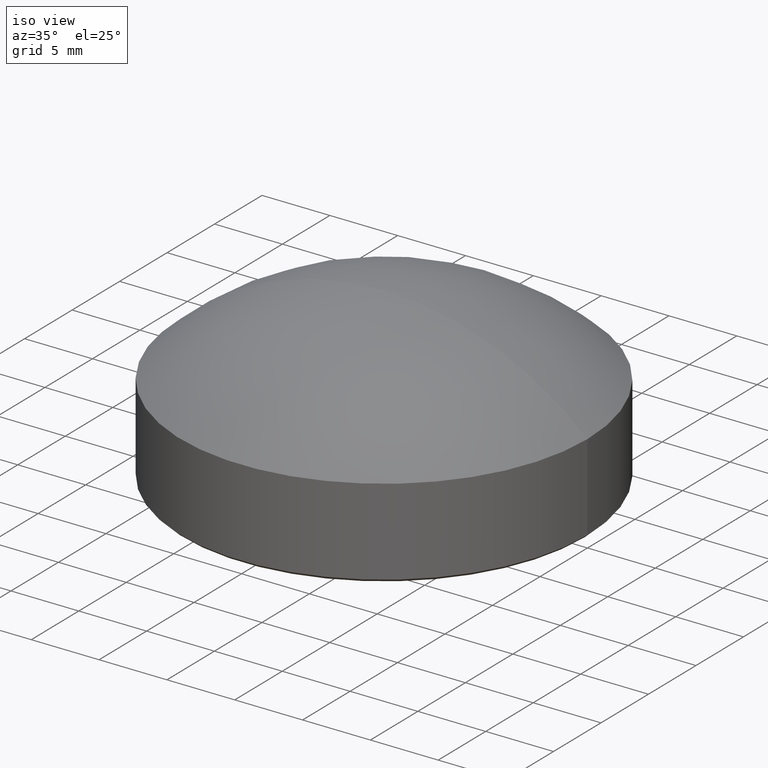
[diagram: clean part render]
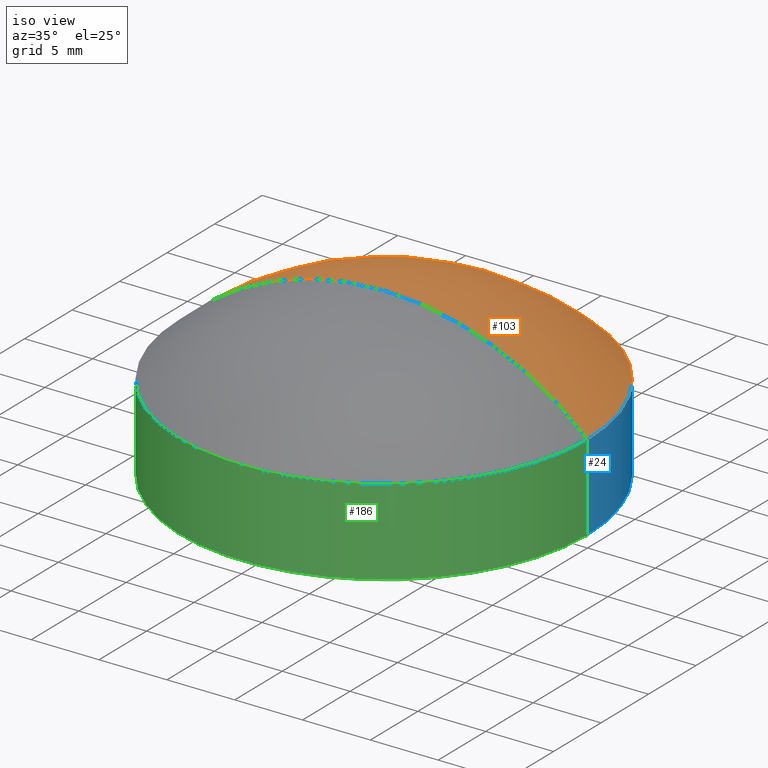
[diagram: same view with three faces highlighted in distinct colors, each labeled with its STEP entity id]
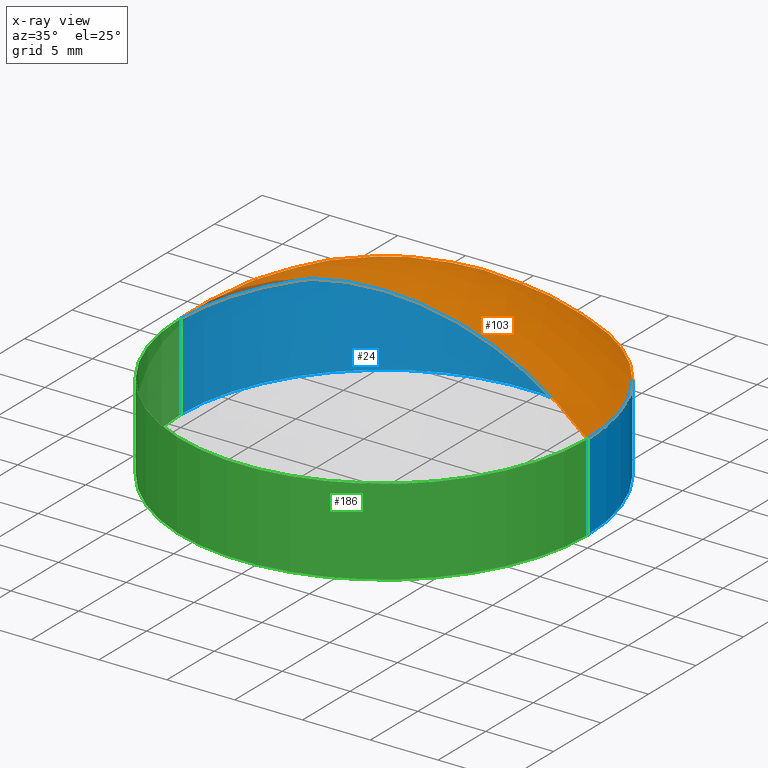
[diagram: x-ray of the same camera — body ghosted, the three highlighted faces saturated]
A machine part, iso view with three faces highlighted in distinct colors.
The next image is the same camera in x-ray (body ghosted, the three faces saturated) — at least one of them is partly hidden behind the body in this view.
Their STEP definitions:

[orange] entity #103 — the highlighted spherical surface has radius 21.9905 mm.
#2 = DIRECTION ( 'NONE',  ( -1.000000000000000000, 0.000000000000000000, 0.000000000000000000 ) ) ;
#7 = ORIENTED_EDGE ( 'NONE', *, *, #154, .T. ) ;
#14 = EDGE_CURVE ( 'NONE', #171, #188, #201, .T. ) ;
#16 = SPHERICAL_SURFACE ( 'NONE', #160, 21.99053299492385349 ) ;
#32 = VERTEX_POINT ( 'NONE', #142 ) ;
#41 = DIRECTION ( 'NONE',  ( 1.000000000000000000, -1.224646799147353207E-16, 0.000000000000000000 ) ) ;
#44 = DIRECTION ( 'NONE',  ( 1.000000000000000000, 0.000000000000000000, 0.000000000000000000 ) ) ;
#48 = AXIS2_PLACEMENT_3D ( 'NONE', #204, #128, #41 ) ;
#55 = EDGE_LOOP ( 'NONE', ( #71, #72, #7 ) ) ;
#61 = CARTESIAN_POINT ( 'NONE',  ( 0.000000000000000000, 0.000000000000000000, -9.490532994923851717 ) ) ;
#67 = DIRECTION ( 'NONE',  ( 0.000000000000000000, 1.000000000000000000, 0.000000000000000000 ) ) ;
#71 = ORIENTED_EDGE ( 'NONE', *, *, #14, .F. ) ;
#72 = ORIENTED_EDGE ( 'NONE', *, *, #161, .T. ) ;
#80 = CARTESIAN_POINT ( 'NONE',  ( 0.000000000000000000, 0.000000000000000000, -9.490532994923851717 ) ) ;
#100 = FACE_OUTER_BOUND ( 'NONE', #55, .T. ) ;
#103 = ADVANCED_FACE ( 'NONE', ( #100 ), #16, .T. ) ;
#110 = AXIS2_PLACEMENT_3D ( 'NONE', #146, #215, #44 ) ;
#128 = DIRECTION ( 'NONE',  ( -1.224646799147353207E-16, -1.000000000000000000, -0.000000000000000000 ) ) ;
#132 = CARTESIAN_POINT ( 'NONE',  ( 15.00000000000000000, 1.836970198721029589E-15, 6.589999999999999858 ) ) ;
#134 = DIRECTION ( 'NONE',  ( 0.000000000000000000, 0.000000000000000000, 1.000000000000000000 ) ) ;
#136 = AXIS2_PLACEMENT_3D ( 'NONE', #80, #67, #134 ) ;
#142 = CARTESIAN_POINT ( 'NONE',  ( -15.00000000000000000, 0.000000000000000000, 6.589999999999999858 ) ) ;
#146 = CARTESIAN_POINT ( 'NONE',  ( 0.000000000000000000, 0.000000000000000000, 6.589999999999999858 ) ) ;
#148 = CIRCLE ( 'NONE', #110, 15.00000000000000000 ) ;
#150 = DIRECTION ( 'NONE',  ( -0.000000000000000000, -1.000000000000000000, 0.000000000000000000 ) ) ;
#154 = EDGE_CURVE ( 'NONE', #32, #188, #207, .T. ) ;
#160 = AXIS2_PLACEMENT_3D ( 'NONE', #61, #150, #2 ) ;
#161 = EDGE_CURVE ( 'NONE', #171, #32, #148, .T. ) ;
#171 = VERTEX_POINT ( 'NONE', #132 ) ;
#188 = VERTEX_POINT ( 'NONE', #198 ) ;
#198 = CARTESIAN_POINT ( 'NONE',  ( -1.346531792188887738E-15, 0.000000000000000000, 12.50000000000000000 ) ) ;
#201 = CIRCLE ( 'NONE', #48, 21.99053299492385349 ) ;
#204 = CARTESIAN_POINT ( 'NONE',  ( 0.000000000000000000, 0.000000000000000000, -9.490532994923851717 ) ) ;
#207 = CIRCLE ( 'NONE', #136, 21.99053299492385349 ) ;
#215 = DIRECTION ( 'NONE',  ( 0.000000000000000000, 0.000000000000000000, 1.000000000000000000 ) ) ;

[blue] entity #24 — the highlighted cylindrical surface (partial cylindrical patch) has radius 15 mm, axis along (-0, -0, -1).
#10 = LINE ( 'NONE', #189, #18 ) ;
#18 = VECTOR ( 'NONE', #144, 1000.000000000000000 ) ;
#23 = VERTEX_POINT ( 'NONE', #56 ) ;
#24 = ADVANCED_FACE ( 'NONE', ( #192 ), #112, .T. ) ;
#29 = EDGE_CURVE ( 'NONE', #32, #23, #98, .T. ) ;
#31 = CARTESIAN_POINT ( 'NONE',  ( 0.000000000000000000, 0.000000000000000000, 6.589999999999999858 ) ) ;
#32 = VERTEX_POINT ( 'NONE', #142 ) ;
#35 = CIRCLE ( 'NONE', #95, 15.00000000000000000 ) ;
#43 = AXIS2_PLACEMENT_3D ( 'NONE', #31, #176, #96 ) ;
#44 = DIRECTION ( 'NONE',  ( 1.000000000000000000, 0.000000000000000000, 0.000000000000000000 ) ) ;
#45 = CARTESIAN_POINT ( 'NONE',  ( 15.00000000000000000, 1.836970198721029589E-15, 0.1999999999999970690 ) ) ;
#47 = DIRECTION ( 'NONE',  ( 1.000000000000000000, 0.000000000000000000, 0.000000000000000000 ) ) ;
#56 = CARTESIAN_POINT ( 'NONE',  ( -15.00000000000000000, 0.000000000000000000, 0.1999999999999970690 ) ) ;
#58 = EDGE_CURVE ( 'NONE', #171, #191, #10, .T. ) ;
#75 = CARTESIAN_POINT ( 'NONE',  ( -15.00000000000000000, 0.000000000000000000, 6.589999999999999858 ) ) ;
#90 = EDGE_LOOP ( 'NONE', ( #106, #113, #175, #158 ) ) ;
#95 = AXIS2_PLACEMENT_3D ( 'NONE', #202, #116, #47 ) ;
#96 = DIRECTION ( 'NONE',  ( -1.000000000000000000, 0.000000000000000000, 0.000000000000000000 ) ) ;
#98 = LINE ( 'NONE', #75, #168 ) ;
#106 = ORIENTED_EDGE ( 'NONE', *, *, #161, .F. ) ;
#110 = AXIS2_PLACEMENT_3D ( 'NONE', #146, #215, #44 ) ;
#112 = CYLINDRICAL_SURFACE ( 'NONE', #43, 15.00000000000000000 ) ;
#113 = ORIENTED_EDGE ( 'NONE', *, *, #58, .T. ) ;
#116 = DIRECTION ( 'NONE',  ( -0.000000000000000000, -0.000000000000000000, 1.000000000000000000 ) ) ;
#132 = CARTESIAN_POINT ( 'NONE',  ( 15.00000000000000000, 1.836970198721029589E-15, 6.589999999999999858 ) ) ;
#140 = DIRECTION ( 'NONE',  ( -0.000000000000000000, -0.000000000000000000, -1.000000000000000000 ) ) ;
#142 = CARTESIAN_POINT ( 'NONE',  ( -15.00000000000000000, 0.000000000000000000, 6.589999999999999858 ) ) ;
#144 = DIRECTION ( 'NONE',  ( -0.000000000000000000, -0.000000000000000000, -1.000000000000000000 ) ) ;
#146 = CARTESIAN_POINT ( 'NONE',  ( 0.000000000000000000, 0.000000000000000000, 6.589999999999999858 ) ) ;
#148 = CIRCLE ( 'NONE', #110, 15.00000000000000000 ) ;
#158 = ORIENTED_EDGE ( 'NONE', *, *, #29, .F. ) ;
#161 = EDGE_CURVE ( 'NONE', #171, #32, #148, .T. ) ;
#168 = VECTOR ( 'NONE', #140, 1000.000000000000000 ) ;
#171 = VERTEX_POINT ( 'NONE', #132 ) ;
#175 = ORIENTED_EDGE ( 'NONE', *, *, #203, .T. ) ;
#176 = DIRECTION ( 'NONE',  ( -0.000000000000000000, -0.000000000000000000, -1.000000000000000000 ) ) ;
#189 = CARTESIAN_POINT ( 'NONE',  ( 15.00000000000000000, 1.836970198721029589E-15, 6.589999999999999858 ) ) ;
#191 = VERTEX_POINT ( 'NONE', #45 ) ;
#192 = FACE_OUTER_BOUND ( 'NONE', #90, .T. ) ;
#202 = CARTESIAN_POINT ( 'NONE',  ( 0.000000000000000000, 0.000000000000000000, 0.1999999999999970690 ) ) ;
#203 = EDGE_CURVE ( 'NONE', #191, #23, #35, .T. ) ;
#215 = DIRECTION ( 'NONE',  ( 0.000000000000000000, 0.000000000000000000, 1.000000000000000000 ) ) ;

[green] entity #186 — the highlighted cylindrical surface (partial cylindrical patch) has radius 15 mm, axis along (-0, -0, -1).
#8 = CIRCLE ( 'NONE', #120, 15.00000000000000000 ) ;
#10 = LINE ( 'NONE', #189, #18 ) ;
#18 = VECTOR ( 'NONE', #144, 1000.000000000000000 ) ;
#23 = VERTEX_POINT ( 'NONE', #56 ) ;
#25 = ORIENTED_EDGE ( 'NONE', *, *, #69, .F. ) ;
#26 = CARTESIAN_POINT ( 'NONE',  ( 0.000000000000000000, 0.000000000000000000, 6.589999999999999858 ) ) ;
#29 = EDGE_CURVE ( 'NONE', #32, #23, #98, .T. ) ;
#32 = VERTEX_POINT ( 'NONE', #142 ) ;
#33 = FACE_OUTER_BOUND ( 'NONE', #37, .T. ) ;
#37 = EDGE_LOOP ( 'NONE', ( #92, #25, #196, #183 ) ) ;
#45 = CARTESIAN_POINT ( 'NONE',  ( 15.00000000000000000, 1.836970198721029589E-15, 0.1999999999999970690 ) ) ;
#56 = CARTESIAN_POINT ( 'NONE',  ( -15.00000000000000000, 0.000000000000000000, 0.1999999999999970690 ) ) ;
#57 = AXIS2_PLACEMENT_3D ( 'NONE', #77, #133, #199 ) ;
#58 = EDGE_CURVE ( 'NONE', #171, #191, #10, .T. ) ;
#69 = EDGE_CURVE ( 'NONE', #32, #171, #211, .T. ) ;
#75 = CARTESIAN_POINT ( 'NONE',  ( -15.00000000000000000, 0.000000000000000000, 6.589999999999999858 ) ) ;
#76 = DIRECTION ( 'NONE',  ( 0.000000000000000000, 0.000000000000000000, 1.000000000000000000 ) ) ;
#77 = CARTESIAN_POINT ( 'NONE',  ( 0.000000000000000000, 0.000000000000000000, 6.589999999999999858 ) ) ;
#84 = DIRECTION ( 'NONE',  ( -0.000000000000000000, -0.000000000000000000, 1.000000000000000000 ) ) ;
#87 = AXIS2_PLACEMENT_3D ( 'NONE', #26, #76, #97 ) ;
#92 = ORIENTED_EDGE ( 'NONE', *, *, #58, .F. ) ;
#97 = DIRECTION ( 'NONE',  ( 1.000000000000000000, 0.000000000000000000, 0.000000000000000000 ) ) ;
#98 = LINE ( 'NONE', #75, #168 ) ;
#119 = DIRECTION ( 'NONE',  ( 1.000000000000000000, 0.000000000000000000, 0.000000000000000000 ) ) ;
#120 = AXIS2_PLACEMENT_3D ( 'NONE', #181, #84, #119 ) ;
#132 = CARTESIAN_POINT ( 'NONE',  ( 15.00000000000000000, 1.836970198721029589E-15, 6.589999999999999858 ) ) ;
#133 = DIRECTION ( 'NONE',  ( -0.000000000000000000, -0.000000000000000000, -1.000000000000000000 ) ) ;
#140 = DIRECTION ( 'NONE',  ( -0.000000000000000000, -0.000000000000000000, -1.000000000000000000 ) ) ;
#142 = CARTESIAN_POINT ( 'NONE',  ( -15.00000000000000000, 0.000000000000000000, 6.589999999999999858 ) ) ;
#144 = DIRECTION ( 'NONE',  ( -0.000000000000000000, -0.000000000000000000, -1.000000000000000000 ) ) ;
#168 = VECTOR ( 'NONE', #140, 1000.000000000000000 ) ;
#171 = VERTEX_POINT ( 'NONE', #132 ) ;
#181 = CARTESIAN_POINT ( 'NONE',  ( 0.000000000000000000, 0.000000000000000000, 0.1999999999999970690 ) ) ;
#183 = ORIENTED_EDGE ( 'NONE', *, *, #205, .T. ) ;
#186 = ADVANCED_FACE ( 'NONE', ( #33 ), #193, .T. ) ;
#189 = CARTESIAN_POINT ( 'NONE',  ( 15.00000000000000000, 1.836970198721029589E-15, 6.589999999999999858 ) ) ;
#191 = VERTEX_POINT ( 'NONE', #45 ) ;
#193 = CYLINDRICAL_SURFACE ( 'NONE', #57, 15.00000000000000000 ) ;
#196 = ORIENTED_EDGE ( 'NONE', *, *, #29, .T. ) ;
#199 = DIRECTION ( 'NONE',  ( -1.000000000000000000, 0.000000000000000000, 0.000000000000000000 ) ) ;
#205 = EDGE_CURVE ( 'NONE', #23, #191, #8, .T. ) ;
#211 = CIRCLE ( 'NONE', #87, 15.00000000000000000 ) ;